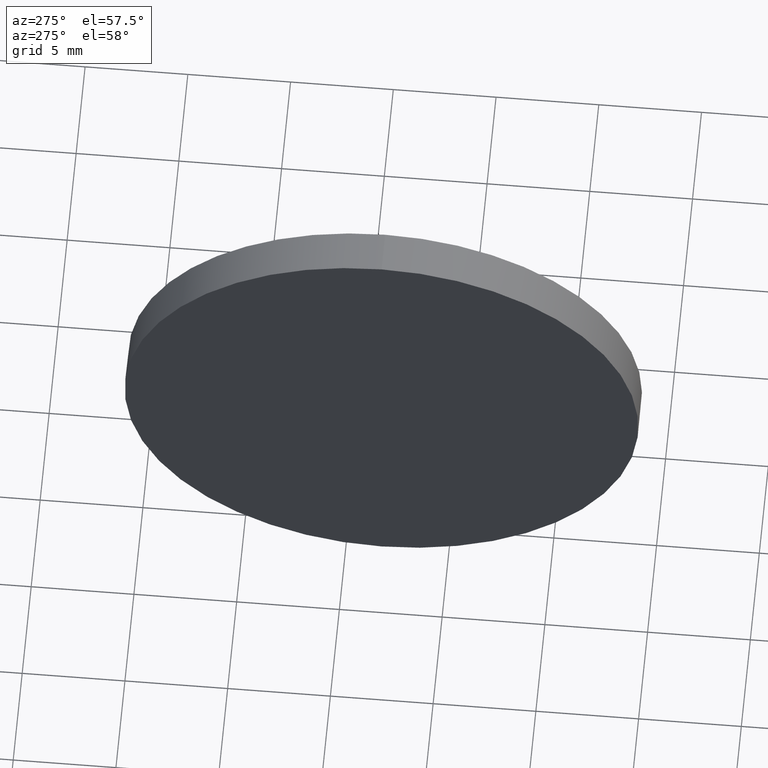
[diagram: clean part render]
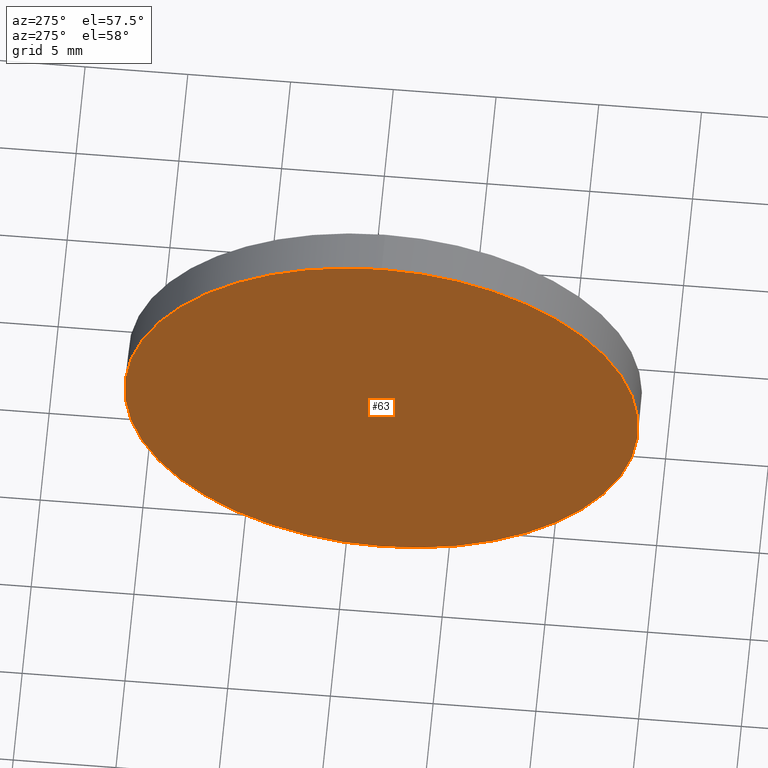
[diagram: same view with one face highlighted and labeled with its STEP entity id]
A machine part, auxiliary view. The second image highlights one B-rep face of the part: STEP entity #63.
In plain terms, the highlighted planar face has unit normal (1, 0, 0).
Its self-contained STEP definition (entity closure, byte-faithful):
#1 = CIRCLE ( 'NONE', #155, 12.49999999999999600 ) ;
#2 = VERTEX_POINT ( 'NONE', #161 ) ;
#15 = PLANE ( 'NONE',  #49 ) ;
#23 = ORIENTED_EDGE ( 'NONE', *, *, #138, .T. ) ;
#49 = AXIS2_PLACEMENT_3D ( 'NONE', #162, #182, #115 ) ;
#62 = DIRECTION ( 'NONE',  ( 0.0000000000000000000, 0.0000000000000000000, 1.000000000000000000 ) ) ;
#63 = ADVANCED_FACE ( 'NONE', ( #105 ), #15, .F. ) ;
#69 = AXIS2_PLACEMENT_3D ( 'NONE', #167, #117, #62 ) ;
#80 = DIRECTION ( 'NONE',  ( -1.000000000000000000, -0.0000000000000000000, -0.0000000000000000000 ) ) ;
#105 = FACE_OUTER_BOUND ( 'NONE', #177, .T. ) ;
#115 = DIRECTION ( 'NONE',  ( 0.0000000000000000000, 0.0000000000000000000, -1.000000000000000000 ) ) ;
#117 = DIRECTION ( 'NONE',  ( -1.000000000000000000, -0.0000000000000000000, -0.0000000000000000000 ) ) ;
#119 = CARTESIAN_POINT ( 'NONE',  ( 403.4479230910874300, 108.2513484294471600, 0.0000000000000000000 ) ) ;
#124 = VERTEX_POINT ( 'NONE', #150 ) ;
#138 = EDGE_CURVE ( 'NONE', #2, #124, #148, .T. ) ;
#139 = ORIENTED_EDGE ( 'NONE', *, *, #157, .T. ) ;
#148 = CIRCLE ( 'NONE', #69, 12.49999999999999600 ) ;
#150 = CARTESIAN_POINT ( 'NONE',  ( 403.4479230910874300, 108.2513484294471600, 12.49999999999999600 ) ) ;
#155 = AXIS2_PLACEMENT_3D ( 'NONE', #119, #80, #163 ) ;
#157 = EDGE_CURVE ( 'NONE', #124, #2, #1, .T. ) ;
#161 = CARTESIAN_POINT ( 'NONE',  ( 403.4479230910874300, 108.2513484294471600, -12.49999999999999600 ) ) ;
#162 = CARTESIAN_POINT ( 'NONE',  ( 403.4479230910874300, 108.2513484294471600, 0.0000000000000000000 ) ) ;
#163 = DIRECTION ( 'NONE',  ( 0.0000000000000000000, 0.0000000000000000000, 1.000000000000000000 ) ) ;
#167 = CARTESIAN_POINT ( 'NONE',  ( 403.4479230910874300, 108.2513484294471600, 0.0000000000000000000 ) ) ;
#177 = EDGE_LOOP ( 'NONE', ( #139, #23 ) ) ;
#182 = DIRECTION ( 'NONE',  ( 1.000000000000000000, 0.0000000000000000000, 0.0000000000000000000 ) ) ;